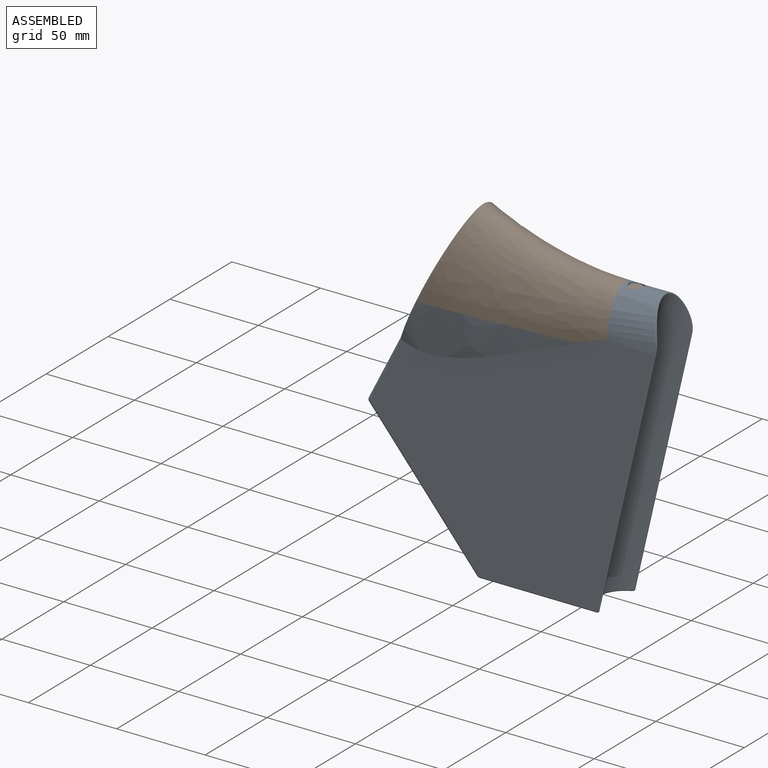
[diagram: assembled view]
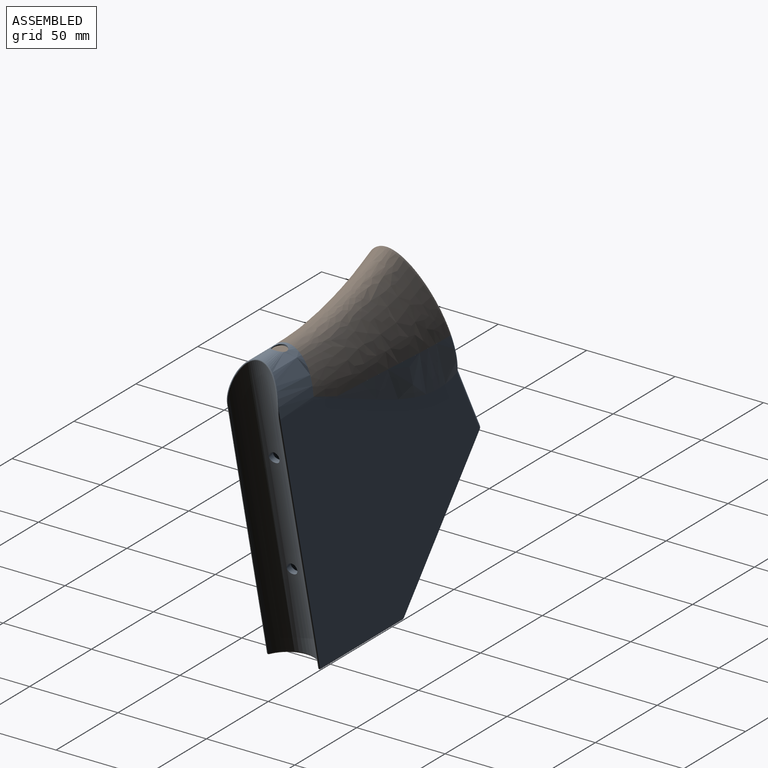
[diagram: assembled view, second angle]
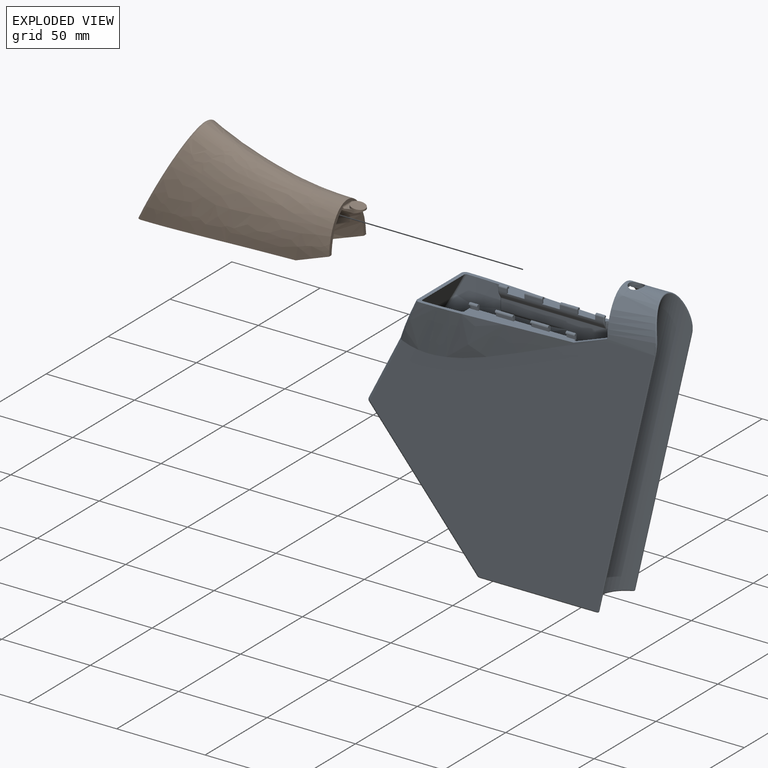
[diagram: exploded view]
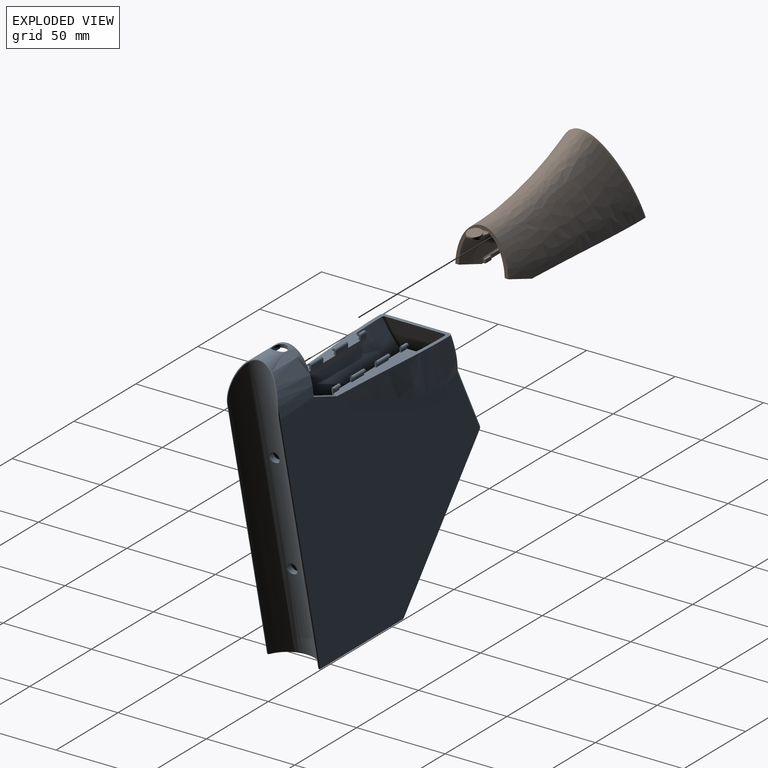
[diagram: exploded view, second angle]
ASSEMBLY  parts=2 mates=3
PART A: 233 faces, bbox 172.2x44.2x170.9 mm
  f0: plane 4x2mm, normal (0,1,0), area 8mm2, adj f1,f230,f231,f232
  f1: plane 2x1mm, normal (-0.26,0.97,0), area 2.1mm2, adj f0,f2,f230,f232
  f2: plane 14.21x4.72mm, normal (-1,0,0), area 32mm2, adj f1,f3,f221,f222,f223,f224,f225,f226
  f3: cylinder r=0.5mm len=0.5mm, axis (0,0,-1), area 0.2mm2, adj f2,f4,f221,f232
  f4: plane 4.5x0.2mm, normal (0,1,0), area 0.9mm2, adj f3,f5,f231,f232
  f5: cylinder r=1mm len=4.5mm, axis (1,0,0), area 14.1mm2, adj f4,f6,f221,f231
  f6: plane 4.5x1.55mm, normal (0,-1,0), area 7mm2, adj f5,f7,f222,f231
  f7: cylinder r=5mm len=59mm, axis (-1,0,0), area 143.9mm2, adj f6,f8,f13,f14,f19,f20,f21,f217
  f8: plane 10x1.55mm, normal (0,-1,0), area 15.5mm2, adj f7,f9,f13,f220
  f9: cylinder r=1mm len=10mm, axis (1,0,0), area 31.4mm2, adj f8,f10,f13,f220
  f10: plane 10x0.2mm, normal (0,1,0), area 2mm2, adj f9,f11,f13,f220
  f11: plane 10x1mm, normal (0,0,-1), area 10mm2, adj f10,f12,f13,f220
  f12: plane 10x2mm, normal (0,1,0), area 20mm2, adj f11,f13,f220,f230
  f13: plane 3.2x2mm, normal (1,0,0), area 4mm2, adj f7,f8,f9,f10,f11,f12,f230
  f14: plane 3.2x2mm, normal (-1,0,0), area 4mm2, adj f7,f15,f16,f17,f18,f19,f230
  f15: plane 10x1mm, normal (0,0,-1), area 10mm2, adj f14,f16,f18,f20
  f16: plane 10x0.2mm, normal (0,1,0), area 2mm2, adj f14,f15,f17,f20
  f17: cylinder r=1mm len=10mm, axis (1,0,0), area 31.4mm2, adj f14,f16,f19,f20
  f18: plane 10x2mm, normal (0,1,0), area 20mm2, adj f14,f15,f20,f230
  f19: plane 10x1.55mm, normal (0,-1,0), area 15.5mm2, adj f7,f14,f17,f20
  f20: plane 3.2x2mm, normal (1,0,0), area 4mm2, adj f7,f15,f16,f17,f18,f19,f230
  f21: plane 3.2x2mm, normal (-1,0,0), area 4mm2, adj f7,f22,f214,f215,f216,f217,f230
  f22: plane 5x1mm, normal (0,0,-1), area 4.9mm2, adj f21,f23,f213,f214,f216
  f23: plane 4.94x1.14mm, normal (1,0,0), area 3mm2, adj f22,f24,f209,f210,f211,f212,f213,f216
  f24: cylinder r=0.5mm len=2.16mm, axis (0,0.53,-0.85), area 1.3mm2, adj f23,f25,f218,f219
  f25: bspline ~2.23x1mm, area 1.1mm2, adj f24,f26,f27,f212
  f26: cylinder r=0.5mm len=59mm, axis (1,0,0), area 16.4mm2, adj f25,f27,f219,f225
  f27: plane 152.44x137.96mm, normal (0,-1,0), area 13663.2mm2, adj f25,f26,f28,f31,f32,f203,f204,f205
  f28: offset ~126.19x67.93mm, area 986.1mm2, adj f27,f29,f30,f31,f208,f229,f230
  f29: plane 14.29x1.71mm, normal (0,0,-1), area 7.6mm2, adj f28,f30,f31,f228
  f30: bspline ~1.86x1.52mm, area 1mm2, adj f28,f29,f228,f229
  f31: cylinder r=2mm len=37.64mm, axis (1,0,0), area 80.2mm2, adj f27,f28,f29,f227
  f32: offset ~119.21x44.91mm, area 21.2mm2, adj f27,f33,f203,f211,f230
  f33: plane 19.96x8.01mm, normal (-0.34,0,0.94), area 40.1mm2, adj f32,f34,f202,f230
  f34: plane 29.97x23.62mm, normal (-1,0,0), area 113.8mm2, adj f33,f35,f196,f197,f198,f199,f200,f201
  f35: extruded ~30x27.22mm, area 1539.6mm2, adj f34,f36,f39,f193,f194,f195,f202
  f36: cylinder r=4mm len=8mm, axis (0,0,-1), area 50.3mm2, adj f35,f37,f199
  f37: plane 12x8mm, normal (0,0,-1), area 70.9mm2, adj f36,f38,f198,f200
  f38: plane 8x2mm, normal (-1,0,0), area 16mm2, adj f37,f198,f200,f201
  f39: plane 160.77x139.45mm, normal (0,-1,0), area 14687mm2, adj f35,f40,f189,f190,f191,f192,f195
  f40: cylinder r=2mm len=36.77mm, axis (0.45,0,0.89), area 125.9mm2, adj f39,f41,f188,f189
  f41: sphere r=2mm, area 5mm2, adj f40,f42,f192
  f42: cylinder r=2mm len=2.19mm, axis (0,1,0), area 4.2mm2, adj f41,f43,f187,f188
  f43: plane 72.94x61.21mm, normal (-0.77,0,-0.64), area 211.3mm2, adj f42,f44,f185,f186,f192
  f44: cylinder r=1mm len=2.22mm, axis (0,1,0), area 1.9mm2, adj f43,f45,f183,f184
  f45: plane 65.82x28mm, normal (0,0,-1), area 1426mm2, adj f44,f46,f69,f70,f71,f72,f73,f180
  f46: cylinder r=1mm len=11.26mm, axis (-0.98,0.19,0), area 15.9mm2, adj f45,f47,f68,f69
  f47: sphere r=1mm, area 0.8mm2, adj f46,f48,f182
  f48: cylinder r=1mm len=73.18mm, axis (-0.64,0,0.77), area 125.8mm2, adj f47,f49,f67,f68
  f49: plane 72.94x61.21mm, normal (-0.77,0,-0.64), area 211.3mm2, adj f48,f50,f66,f67,f182
  f50: cylinder r=2mm len=2.19mm, axis (0,1,0), area 4.2mm2, adj f49,f51,f54,f188
  f51: sphere r=2mm, area 7.3mm2, adj f50,f52,f66
  f52: cylinder r=2mm len=36.77mm, axis (-0.45,0,-0.89), area 125.9mm2, adj f51,f53,f188,f194
  f53: bspline ~32.39x17.83mm, area 87.7mm2, adj f52,f188,f194,f202,f230
  f54: bspline ~2.26x1.66mm, area 1.1mm2, adj f50,f55,f67
  f55: cylinder r=2mm len=11.63mm, axis (-0.44,0.22,-0.87), area 30.2mm2, adj f54,f56,f65,f67,f68,f188
  f56: bspline ~2.9x2.24mm, area 1.2mm2, adj f55,f57,f65
  f57: cylinder r=2mm len=18.12mm, axis (0,1,0), area 37.2mm2, adj f56,f58,f63,f188
  f58: bspline ~2.9x2.24mm, area 1.2mm2, adj f57,f59,f62
  f59: cylinder r=2mm len=11.63mm, axis (0.44,0.22,0.87), area 30.2mm2, adj f58,f60,f62,f186,f187,f188
  f60: plane 80.9x72.07mm, normal (-0.19,0.97,-0.16), area 876.8mm2, adj f59,f61,f72,f185
  f61: cylinder r=1mm len=82.36mm, axis (-0.64,0,0.77), area 140.9mm2, adj f60,f62,f63,f71
  f62: bspline ~1.23x1.04mm, area 1mm2, adj f58,f59,f61,f63
  f63: plane 82.61x69.32mm, normal (-0.77,0,-0.64), area 1449.4mm2, adj f57,f61,f62,f64,f65,f70
  f64: cylinder r=1mm len=82.36mm, axis (0.64,0,-0.77), area 140.9mm2, adj f63,f65,f68,f69
  f65: bspline ~1.23x1.04mm, area 1mm2, adj f55,f56,f63,f64
  f66: cylinder r=2mm len=74.86mm, axis (0.64,0,-0.77), area 300.4mm2, adj f49,f51,f181,f194
  f67: bspline ~1.02x0.88mm, area 0.6mm2, adj f48,f49,f54,f55
  f68: plane 80.9x72.07mm, normal (-0.19,-0.97,-0.16), area 876.8mm2, adj f46,f48,f55,f64
  f69: bspline ~2.45x1.99mm, area 2.6mm2, adj f45,f46,f64,f70
  f70: cylinder r=1mm len=13.44mm, axis (0,1,0), area 11.7mm2, adj f45,f63,f69,f71
  f71: bspline ~2.45x2.34mm, area 2.6mm2, adj f45,f61,f70,f72
  f72: cylinder r=1mm len=11.26mm, axis (0.98,0.19,0), area 15.9mm2, adj f45,f60,f71,f183
  f73: bspline ~29.93x10.95mm, area 49.1mm2, adj f45,f74,f178,f179
  f74: cylinder r=15mm len=166.25mm, axis (-0.22,0,-0.97), area 5796.9mm2, adj f73,f75,f174,f175,f176,f177,f190,f193
  f75: cylinder r=3mm len=6.52mm, axis (-0.97,0,0.22), area 56.5mm2, adj f74,f76
  f76: plane 11x10.72mm, normal (-0.97,0,0.22), area 66.8mm2, adj f75,f77
  f77: torus R=5.5mm, axis (0.97,0,-0.22), area 28.7mm2, adj f76,f78,f173
  f78: cylinder r=6mm len=11.69mm, axis (-0.97,0,0.22), area 0mm2, adj f77,f79
  f79: bspline ~12.67x12.65mm, area 26.9mm2, adj f78,f80,f173
  f80: cylinder r=17mm len=158.67mm, axis (-0.22,0,-0.97), area 3555.2mm2, adj f79,f81,f165,f166,f167,f168,f201,f204
  f81: bspline ~24x5.43mm, area 34.8mm2, adj f80,f82,f83,f164
  f82: sphere r=1mm, area 1.1mm2, adj f81,f204,f205
  f83: plane 57.74x24mm, normal (0,0,1), area 1062.2mm2, adj f81,f84,f161,f162,f163,f205
  f84: cylinder r=1mm len=19.68mm, axis (0,-1,0), area 15.5mm2, adj f83,f85,f159,f160
  f85: bspline ~2.08x1.97mm, area 1.1mm2, adj f84,f86,f161
  f86: bspline ~2.39x1.95mm, area 3.4mm2, adj f85,f87,f159,f161
  f87: cylinder r=2mm len=80.91mm, axis (-0.64,0,0.77), area 275.4mm2, adj f86,f88,f158,f159
  f88: bspline ~2.91x2.81mm, area 4.3mm2, adj f87,f89,f156,f157
  f89: cylinder r=1mm len=15mm, axis (0,1,0), area 17.5mm2, adj f88,f90,f157,f159
  f90: bspline ~2.91x2.81mm, area 4.3mm2, adj f89,f91,f154,f157
  f91: cylinder r=1mm len=8.82mm, axis (-0.44,-0.22,-0.87), area 13.5mm2, adj f90,f92,f152,f153,f157
  f92: plane 72.78x61.11mm, normal (0.77,0,0.64), area 135.4mm2, adj f91,f93,f152,f153,f162,f163
  f93: plane 151.98x137.5mm, normal (0,1,0), area 13602.1mm2, adj f92,f94,f95,f144,f145,f146,f147,f148
  f94: offset ~119.21x44.91mm, area 20.9mm2, adj f93,f95,f196,f197,f230
  f95: bspline ~7.39x1.43mm, area 1mm2, adj f93,f94,f96,f144,f230
  f96: plane 4.94x1.14mm, normal (1,0,0), area 3mm2, adj f95,f97,f137,f138,f139,f140,f141,f142
  f97: plane 5x2mm, normal (0,-1,0), area 10mm2, adj f96,f98,f137,f230
  f98: plane 3.2x2mm, normal (-1,0,0), area 4mm2, adj f97,f99,f134,f135,f136,f137,f230
  f99: cylinder r=5mm len=59mm, axis (-1,0,0), area 143.9mm2, adj f98,f100,f117,f118,f119,f120,f125,f126
  f100: plane 3.2x2mm, normal (1,0,0), area 4mm2, adj f99,f101,f114,f115,f116,f117,f230
  f101: plane 5x1.27mm, normal (0,0,-1), area 5.1mm2, adj f100,f102,f103,f113,f114,f116
  f102: plane 2x1mm, normal (-0.26,-0.97,0), area 2.1mm2, adj f101,f103,f116,f230
  f103: plane 14.21x4.72mm, normal (-1,0,0), area 32.2mm2, adj f101,f102,f104,f107,f108,f109,f110,f111
  f104: bspline ~17.02x2.72mm, area 17.4mm2, adj f103,f105,f150,f230
  f105: bspline ~1.86x1.52mm, area 1mm2, adj f104,f106,f107,f150
  f106: plane 14.29x1.71mm, normal (0,0,-1), area 7.6mm2, adj f105,f107,f149,f150
  f107: cylinder r=0.5mm len=0.5mm, axis (0,-1,0), area 0.2mm2, adj f103,f105,f106,f108
  f108: torus R=1.5mm, axis (1,0,0), area 2.2mm2, adj f103,f107,f148,f149
  f109: torus R=5.5mm, axis (1,0,0), area 2.3mm2, adj f103,f110,f147,f148
  f110: cylinder r=0.5mm len=1.08mm, axis (0,-0.53,-0.85), area 0.8mm2, adj f103,f109,f118,f119
  f111: cylinder r=0.5mm len=1.55mm, axis (0,0,-1), area 1.2mm2, adj f103,f112,f117,f118
  f112: torus R=0.5mm, axis (1,0,0), area 2mm2, adj f103,f111,f113,f115
  f113: cylinder r=0.5mm len=0.5mm, axis (0,0,1), area 0.2mm2, adj f101,f103,f112,f114
  f114: plane 4.5x0.2mm, normal (0,-1,0), area 0.9mm2, adj f100,f101,f113,f115
  f115: cylinder r=1mm len=4.5mm, axis (1,0,0), area 14.1mm2, adj f100,f112,f114,f117
  f116: plane 4x2mm, normal (0,-1,0), area 8mm2, adj f100,f101,f102,f230
  f117: plane 4.5x1.55mm, normal (0,1,0), area 7mm2, adj f99,f100,f111,f115
  f118: torus R=4.5mm, axis (1,0,0), area 2.1mm2, adj f99,f103,f110,f111
  f119: plane 59x0.81mm, normal (0,0.85,-0.53), area 56.4mm2, adj f99,f110,f142,f147
  f120: plane 3.2x2mm, normal (1,0,0), area 4mm2, adj f99,f121,f122,f123,f124,f125,f230
  f121: plane 10x1mm, normal (0,0,-1), area 10mm2, adj f120,f122,f124,f126
  f122: plane 10x0.2mm, normal (0,-1,0), area 2mm2, adj f120,f121,f123,f126
  f123: cylinder r=1mm len=10mm, axis (1,0,0), area 31.4mm2, adj f120,f122,f125,f126
  f124: plane 10x2mm, normal (0,-1,0), area 20mm2, adj f120,f121,f126,f230
  f125: plane 10x1.55mm, normal (0,1,0), area 15.5mm2, adj f99,f120,f123,f126
  f126: plane 3.2x2mm, normal (-1,0,0), area 4mm2, adj f99,f121,f122,f123,f124,f125,f230
  f127: plane 3.2x2mm, normal (1,0,0), area 4mm2, adj f99,f128,f129,f130,f131,f132,f230
  f128: plane 10x1mm, normal (0,0,-1), area 10mm2, adj f127,f129,f131,f133
  f129: plane 10x0.2mm, normal (0,-1,0), area 2mm2, adj f127,f128,f130,f133
  f130: cylinder r=1mm len=10mm, axis (1,0,0), area 31.4mm2, adj f127,f129,f132,f133
  f131: plane 10x2mm, normal (0,-1,0), area 20mm2, adj f127,f128,f133,f230
  f132: plane 10x1.55mm, normal (0,1,0), area 15.5mm2, adj f99,f127,f130,f133
  f133: plane 3.2x2mm, normal (-1,0,0), area 4mm2, adj f99,f128,f129,f130,f131,f132,f230
  f134: plane 4.5x1.55mm, normal (0,1,0), area 7mm2, adj f98,f99,f135,f140
  f135: cylinder r=1mm len=4.5mm, axis (1,0,0), area 14.1mm2, adj f98,f134,f136,f139
  f136: plane 4.5x0.2mm, normal (0,-1,0), area 0.9mm2, adj f98,f135,f137,f138
  f137: plane 5x1mm, normal (0,0,-1), area 4.9mm2, adj f96,f97,f98,f136,f138
  f138: cylinder r=0.5mm len=0.5mm, axis (0,0,-1), area 0.2mm2, adj f96,f136,f137,f139
  f139: torus R=0.5mm, axis (1,0,0), area 2mm2, adj f96,f135,f138,f140
  f140: cylinder r=0.5mm len=1.55mm, axis (0,0,1), area 1.2mm2, adj f96,f134,f139,f141
  f141: torus R=4.5mm, axis (1,0,0), area 2.1mm2, adj f96,f99,f140,f142
  f142: cylinder r=0.5mm len=1.08mm, axis (0,0.53,0.85), area 0.7mm2, adj f96,f119,f141,f143,f145
  f143: torus R=5.5mm, axis (1,0,0), area 1mm2, adj f142,f146,f147
  f144: cylinder r=0.5mm len=1.08mm, axis (0,0,-1), area 0.8mm2, adj f93,f95,f96,f145
  f145: bspline ~0.51x0.5mm, area 0.3mm2, adj f93,f142,f144,f146
  f146: bspline ~3.22x1mm, area 0.7mm2, adj f93,f143,f145
  f147: cylinder r=5mm len=59mm, axis (1,0,0), area 163.5mm2, adj f93,f109,f119,f143
  f148: cylinder r=0.5mm len=4.58mm, axis (0,0,1), area 3.6mm2, adj f93,f103,f108,f109
  f149: cylinder r=2mm len=37.64mm, axis (1,0,0), area 80.2mm2, adj f93,f106,f108,f150
  f150: offset ~126.19x67.93mm, area 986.6mm2, adj f93,f104,f105,f106,f149,f151,f230
  f151: bspline ~31.94x16.94mm, area 44.8mm2, adj f150,f153,f157,f230
  f152: plane 79.19x70.64mm, normal (0.19,-0.97,0.16), area 857.3mm2, adj f91,f92,f154,f163
  f153: cylinder r=1mm len=36.94mm, axis (-0.45,0,-0.89), area 63.5mm2, adj f91,f92,f93,f151,f157
  f154: cylinder r=2mm len=80.91mm, axis (0.64,0,-0.77), area 275.4mm2, adj f90,f152,f155,f159
  f155: bspline ~2.39x1.95mm, area 3.4mm2, adj f154,f159,f160,f163
  f156: cylinder r=1mm len=8.82mm, axis (-0.44,0.22,-0.87), area 13.5mm2, adj f88,f157,f158,f206,f207
  f157: plane 58.51x33.76mm, normal (0.89,0,-0.45), area 1544.4mm2, adj f88,f89,f90,f91,f151,f153,f156,f207
  f158: plane 79.19x70.64mm, normal (0.19,0.97,0.16), area 857.3mm2, adj f87,f156,f161,f206
  f159: plane 81.39x68.3mm, normal (0.77,0,0.64), area 1594.3mm2, adj f84,f86,f87,f89,f154,f155
  f160: bspline ~2.08x1.97mm, area 1.1mm2, adj f84,f155,f163
  f161: cylinder r=1mm len=14.23mm, axis (0.98,-0.19,0), area 17.4mm2, adj f83,f85,f86,f158,f205,f206
  f162: cylinder r=1mm len=60.83mm, axis (1,0,0), area 94.6mm2, adj f83,f92,f93,f163,f164
  f163: cylinder r=1mm len=14.23mm, axis (-0.98,-0.19,0), area 17.4mm2, adj f83,f92,f152,f155,f160,f162
  f164: sphere r=1mm, area 1.1mm2, adj f81,f162,f167
  f165: bspline ~25.66x10.66mm, area 51.6mm2, adj f80,f201,f203,f204
  f166: bspline ~25.66x10.66mm, area 51.6mm2, adj f80,f167,f197,f201
  f167: cylinder r=1mm len=137.67mm, axis (-0.22,0,-0.97), area 324.5mm2, adj f80,f93,f164,f166
  f168: bspline ~12.67x12.65mm, area 26.9mm2, adj f80,f169,f172
  f169: cylinder r=6mm len=11.69mm, axis (-0.97,0,0.22), area 0mm2, adj f168,f170
  f170: torus R=5.5mm, axis (0.97,0,-0.22), area 28.7mm2, adj f169,f171,f172
  f171: plane 11x10.72mm, normal (-0.97,0,0.22), area 66.8mm2, adj f170,f177
  f172: cylinder r=6mm len=11.97mm, axis (-0.97,0,0.22), area 11.7mm2, adj f168,f170
  f173: cylinder r=6mm len=11.97mm, axis (-0.97,0,0.22), area 11.7mm2, adj f77,f79
  f174: bspline ~2.85x1.48mm, area 0.2mm2, adj f74,f175,f178,f180
  f175: cylinder r=0.5mm len=139.56mm, axis (-0.22,0,-0.97), area 199mm2, adj f74,f174,f193,f194
  f176: bspline ~2.85x1.48mm, area 0.2mm2, adj f74,f179,f190,f191
  f177: cylinder r=3mm len=6.52mm, axis (-0.97,0,0.22), area 56.5mm2, adj f74,f171
  f178: bspline ~4.95x1.6mm, area 1.5mm2, adj f73,f174,f180
  f179: bspline ~4.95x1.6mm, area 1.5mm2, adj f73,f176,f191
  f180: cylinder r=1mm len=66.84mm, axis (1,0,0), area 103.6mm2, adj f45,f174,f178,f181,f194
  f181: bspline ~2.45x2.44mm, area 3mm2, adj f45,f66,f180,f182
  f182: cylinder r=1mm len=2.22mm, axis (0,1,0), area 1.9mm2, adj f45,f47,f49,f181
  f183: sphere r=1mm, area 0.8mm2, adj f44,f72,f185
  f184: bspline ~2.45x2.09mm, area 3mm2, adj f44,f45,f191,f192
  f185: cylinder r=1mm len=73.18mm, axis (0.64,0,-0.77), area 125.8mm2, adj f43,f60,f183,f186
  f186: bspline ~1.02x0.88mm, area 0.6mm2, adj f43,f59,f185,f187
  f187: bspline ~2.26x1.66mm, area 1.1mm2, adj f42,f59,f186
  f188: plane 59.52x35.69mm, normal (-0.89,0,0.45), area 1675.8mm2, adj f40,f42,f50,f52,f53,f55,f57,f59
  f189: bspline ~32.89x18.08mm, area 87.7mm2, adj f39,f40,f188,f195,f230
  f190: cylinder r=0.5mm len=139.56mm, axis (-0.22,0,-0.97), area 199mm2, adj f39,f74,f176,f193
  f191: cylinder r=1mm len=66.84mm, axis (-1,0,0), area 103.6mm2, adj f39,f45,f176,f179,f184
  f192: cylinder r=2mm len=74.86mm, axis (-0.64,0,0.77), area 300.4mm2, adj f39,f41,f43,f184
  f193: bspline ~30.01x29.57mm, area 75.3mm2, adj f35,f74,f175,f190
  f194: plane 160.77x139.45mm, normal (0,1,0), area 14687mm2, adj f35,f52,f53,f66,f175,f180,f202
  f195: bspline ~118.82x57.78mm, area 1657.3mm2, adj f35,f39,f189,f196,f230
  f196: plane 19.96x8.01mm, normal (-0.34,0,0.94), area 40.1mm2, adj f34,f94,f195,f230
  f197: extruded ~21x19.84mm, area 450.7mm2, adj f34,f93,f94,f166,f201
  f198: plane 18x2mm, normal (0,1,0), area 36mm2, adj f34,f37,f38,f199,f201
  f199: plane 8x6mm, normal (0,0,-1), area 22.9mm2, adj f34,f36,f198,f200
  f200: plane 18x2mm, normal (0,-1,0), area 36mm2, adj f34,f37,f38,f199,f201
  f201: plane 20.87x11.15mm, normal (0,0,-1), area 64mm2, adj f34,f38,f80,f165,f166,f197,f198,f200
  f202: bspline ~118.82x57.78mm, area 1657.3mm2, adj f33,f35,f53,f194,f230
  f203: extruded ~21x19.84mm, area 450.7mm2, adj f27,f32,f34,f165,f201
  f204: cylinder r=1mm len=137.67mm, axis (-0.22,0,-0.97), area 324.5mm2, adj f27,f80,f82,f165
  f205: cylinder r=1mm len=60.83mm, axis (-1,0,0), area 94.6mm2, adj f27,f82,f83,f161,f206
  f206: plane 72.78x61.11mm, normal (0.77,0,0.64), area 135.4mm2, adj f27,f156,f158,f161,f205,f207
  f207: cylinder r=1mm len=36.93mm, axis (-0.45,0,-0.89), area 63.5mm2, adj f27,f156,f157,f206,f208
  f208: bspline ~29.25x15.56mm, area 44.8mm2, adj f27,f28,f157,f207,f230
  f209: cylinder r=0.5mm len=1.55mm, axis (0,0,-1), area 1.2mm2, adj f23,f210,f217,f218
  f210: torus R=0.5mm, axis (1,0,0), area 2mm2, adj f23,f209,f213,f215
  f211: bspline ~7.39x1.44mm, area 1mm2, adj f23,f32,f212,f230
  f212: cylinder r=0.5mm len=1.08mm, axis (0,0,1), area 0.8mm2, adj f23,f25,f27,f211
  f213: cylinder r=0.5mm len=0.5mm, axis (0,0,1), area 0.2mm2, adj f22,f23,f210,f214
  f214: plane 4.5x0.2mm, normal (0,1,0), area 0.9mm2, adj f21,f22,f213,f215
  f215: cylinder r=1mm len=4.5mm, axis (1,0,0), area 14.1mm2, adj f21,f210,f214,f217
  f216: plane 5x2mm, normal (0,1,0), area 10mm2, adj f21,f22,f23,f230
  f217: plane 4.5x1.55mm, normal (0,-1,0), area 7mm2, adj f7,f21,f209,f215
  f218: torus R=4.5mm, axis (1,0,0), area 2.1mm2, adj f7,f23,f24,f209
  f219: plane 59x1.9mm, normal (0,-0.85,-0.53), area 131.9mm2, adj f7,f24,f26,f224
  f220: plane 3.2x2mm, normal (-1,0,0), area 4mm2, adj f7,f8,f9,f10,f11,f12,f230
  f221: torus R=0.5mm, axis (1,0,0), area 2mm2, adj f2,f3,f5,f222
  f222: cylinder r=0.5mm len=1.55mm, axis (0,0,1), area 1.2mm2, adj f2,f6,f221,f223
  f223: torus R=4.5mm, axis (1,0,0), area 2.1mm2, adj f2,f7,f222,f224
  f224: cylinder r=0.5mm len=2.16mm, axis (0,-0.53,0.85), area 1.8mm2, adj f2,f219,f223,f225
  f225: torus R=1mm, axis (1,0,0), area 0.3mm2, adj f2,f26,f224,f226
  f226: cylinder r=0.5mm len=5.86mm, axis (0,0,-1), area 4.6mm2, adj f2,f27,f225,f227
  f227: torus R=1.5mm, axis (1,0,0), area 2.2mm2, adj f2,f31,f226,f228
  f228: cylinder r=0.5mm len=0.5mm, axis (0,-1,0), area 0.2mm2, adj f2,f29,f30,f227
  f229: bspline ~17.02x2.72mm, area 17.4mm2, adj f2,f28,f30,f230
  f230: plane 86.82x40mm, normal (0,0,1), area 855.3mm2, adj f0,f1,f2,f7,f12,f13,f14,f18
  f231: plane 3.2x2mm, normal (1,0,0), area 4mm2, adj f0,f4,f5,f6,f7,f230,f232
  f232: plane 5x1.27mm, normal (0,0,-1), area 5.1mm2, adj f0,f1,f2,f3,f4,f231
PART B: 57 faces, bbox 188.1x95.6x152.3 mm
  f0: plane 5x0.6mm, normal (0,0,1), area 2.4mm2, adj f4,f29,f43,f53
  f1: plane 47.07x4.18mm, normal (0,0,1), area 98mm2, adj f7,f8,f30,f31,f34,f35,f36,f37
  f2: plane 10x2mm, normal (0,-1,0), area 20mm2, adj f5,f15,f47,f49
  f3: plane 10x2mm, normal (0,-1,0), area 20mm2, adj f5,f15,f44,f46
  f4: plane 5x2mm, normal (0,-1,0), area 10mm2, adj f0,f15,f29,f43
  f5: plane 47.08x4.18mm, normal (0,0,1), area 98mm2, adj f2,f3,f27,f28,f42,f44,f45,f46
  f6: plane 5x0.6mm, normal (0,0,1), area 2.4mm2, adj f9,f32,f33,f52
  f7: plane 10x2mm, normal (0,1,0), area 20mm2, adj f1,f15,f37,f39
  f8: plane 10x2mm, normal (0,1,0), area 20mm2, adj f1,f15,f34,f36
  f9: plane 5x2mm, normal (0,1,0), area 10mm2, adj f6,f15,f32,f33
  f10: plane 12.51x2.03mm, normal (0,-1,0), area 13.6mm2, adj f11,f12,f14,f22,f23,f26,f51
  f11: cylinder r=4mm len=8mm, axis (0,0,-1), area 36.3mm2, adj f10,f21,f22,f24,f25,f51
  f12: plane 65.99x59.64mm, normal (1,0,0), area 112.9mm2, adj f10,f14,f16,f18,f20,f21,f26
  f13: plane 46.46x33.98mm, normal (0.89,0,-0.45), area 1412.6mm2, adj f15,f54
  f14: offset ~129.92x102.82mm, area 8893.6mm2, adj f10,f12,f15,f16,f20,f21,f23,f29
  f15: plane 138.85x92.02mm, normal (0,0,-1), area 737.4mm2, adj f2,f3,f4,f7,f8,f9,f13,f14
  f16: plane 71.01x59.06mm, normal (0.34,0,-0.94), area 40.1mm2, adj f12,f14,f15,f18
  f17: plane 48.24x36mm, normal (-0.89,0,0.45), area 1566.4mm2, adj f15,f19
  f18: bspline ~108.59x63.15mm, area 8004.9mm2, adj f12,f15,f16,f19,f20
  f19: bspline ~55.24x40.04mm, area 389.7mm2, adj f15,f17,f18
  f20: plane 19.97x8.02mm, normal (0.34,0,-0.94), area 40.1mm2, adj f12,f14,f15,f18
  f21: plane 13.26x2.78mm, normal (0,1,0), area 13.6mm2, adj f11,f12,f14,f22,f23,f26,f51
  f22: plane 11.07x8mm, normal (0,0,-1), area 88.6mm2, adj f10,f11,f21,f23,f24
  f23: plane 8.76x4.67mm, normal (-0.5,0,-0.87), area 29.1mm2, adj f10,f14,f21,f22
  f24: plane 7.98x3.73mm, normal (0.26,0,-0.97), area 23.8mm2, adj f11,f22
  f25: plane 8x8mm, normal (0.17,0,0.98), area 51mm2, adj f11
  f26: cylinder r=1mm len=8mm, axis (0,-1,0), area 15.7mm2, adj f10,f12,f21,f51
  f27: plane 4.24x2mm, normal (-1,0,0), area 8.5mm2, adj f5,f15,f28,f53,f56
  f28: plane 5x2mm, normal (0,-1,0), area 10mm2, adj f5,f15,f27,f50
  f29: plane 54.73x53.14mm, normal (1,0,0), area 2.7mm2, adj f0,f4,f14,f15,f53
  f30: plane 5x2mm, normal (0,1,0), area 10mm2, adj f1,f15,f31,f40
  f31: plane 4.24x2mm, normal (-1,0,0), area 8.5mm2, adj f1,f15,f30,f52,f55
  f32: plane 3x1.41mm, normal (1,0,0), area 2.7mm2, adj f6,f9,f14,f15,f52
  f33: plane 2.1x1.01mm, normal (-1,0,0), area 2mm2, adj f6,f9,f15,f35,f52
  f34: plane 2x1mm, normal (1,0,0), area 2mm2, adj f1,f8,f15,f35
  f35: plane 10.02x2.1mm, normal (0,1,0), area 20.2mm2, adj f1,f15,f33,f34,f52
  f36: plane 2x1mm, normal (-1,0,0), area 2mm2, adj f1,f8,f15,f38
  f37: plane 2x1mm, normal (1,0,0), area 2mm2, adj f1,f7,f15,f38
  f38: plane 10x2mm, normal (0,1,0), area 20mm2, adj f1,f15,f36,f37
  f39: plane 2x1mm, normal (-1,0,0), area 2mm2, adj f1,f7,f15,f41
  f40: plane 2x1mm, normal (1,0,0), area 2mm2, adj f1,f15,f30,f41
  f41: plane 10x2mm, normal (0,1,0), area 20mm2, adj f1,f15,f39,f40
  f42: plane 10.02x2.11mm, normal (0,-1,0), area 20.2mm2, adj f5,f15,f43,f44,f53
  f43: plane 2.1x1.01mm, normal (-1,0,0), area 2mm2, adj f0,f4,f15,f42,f53
  f44: plane 2x1mm, normal (1,0,0), area 2mm2, adj f3,f5,f15,f42
  f45: plane 10x2mm, normal (0,-1,0), area 20mm2, adj f5,f15,f46,f47
  f46: plane 2x1mm, normal (-1,0,0), area 2mm2, adj f3,f5,f15,f45
  f47: plane 2x1mm, normal (1,0,0), area 2mm2, adj f2,f5,f15,f45
  f48: plane 10x2mm, normal (0,-1,0), area 20mm2, adj f5,f15,f49,f50
  f49: plane 2x1mm, normal (-1,0,0), area 2mm2, adj f2,f5,f15,f48
  f50: plane 2x1mm, normal (1,0,0), area 2mm2, adj f5,f15,f28,f48
  f51: plane 8x4.62mm, normal (-0.2,0,0.98), area 12mm2, adj f10,f11,f21,f26
  f52: bspline ~72.27x5.41mm, area 93.6mm2, adj f1,f6,f14,f31,f32,f33,f35,f55
  f53: bspline ~72.09x5.36mm, area 93.6mm2, adj f0,f5,f14,f27,f29,f42,f43,f56
  f54: bspline ~53.04x36.01mm, area 184.4mm2, adj f13,f14,f15
  f55: bspline ~12.28x1.3mm, area 3.8mm2, adj f14,f15,f31,f52
  f56: bspline ~12.28x1.3mm, area 3.8mm2, adj f14,f15,f27,f53
PLACE A t=(-229.92,89.69,104.54)mm
PLACE B t=(-229.92,89.69,104.54)mm
MATE planar B.f12 <-> A.f34  axis (1,0,0) through (-229.92,89.69,259.4)mm
MATE planar B.f15 <-> A.f230  axis (0,0,-1) through (-259.92,102.69,239.54)mm
MATE planar A.f131 <-> B.f7  axis (0,-1,0) through (-289.92,77.69,240.54)mm
